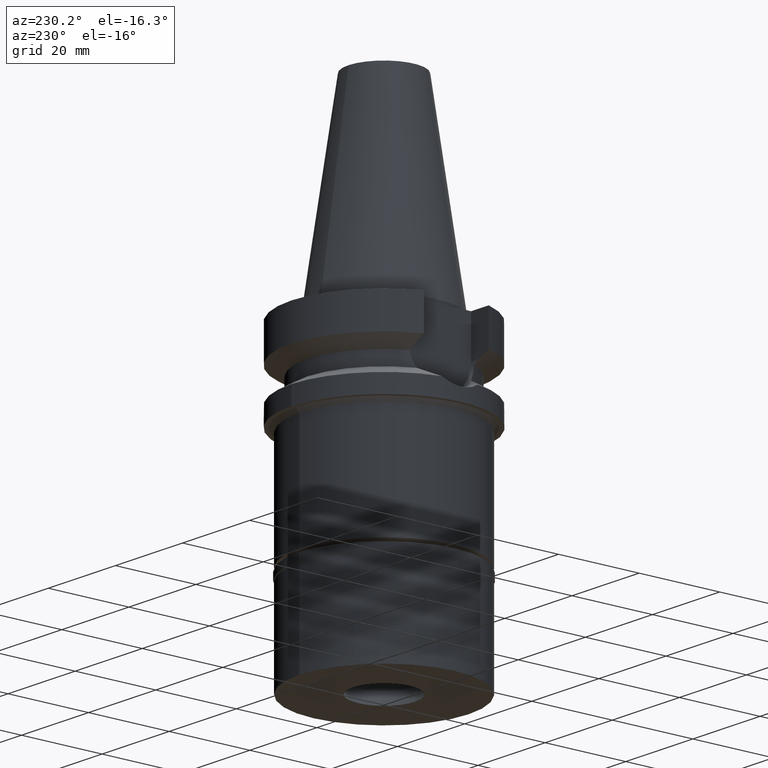
[diagram: clean part render]
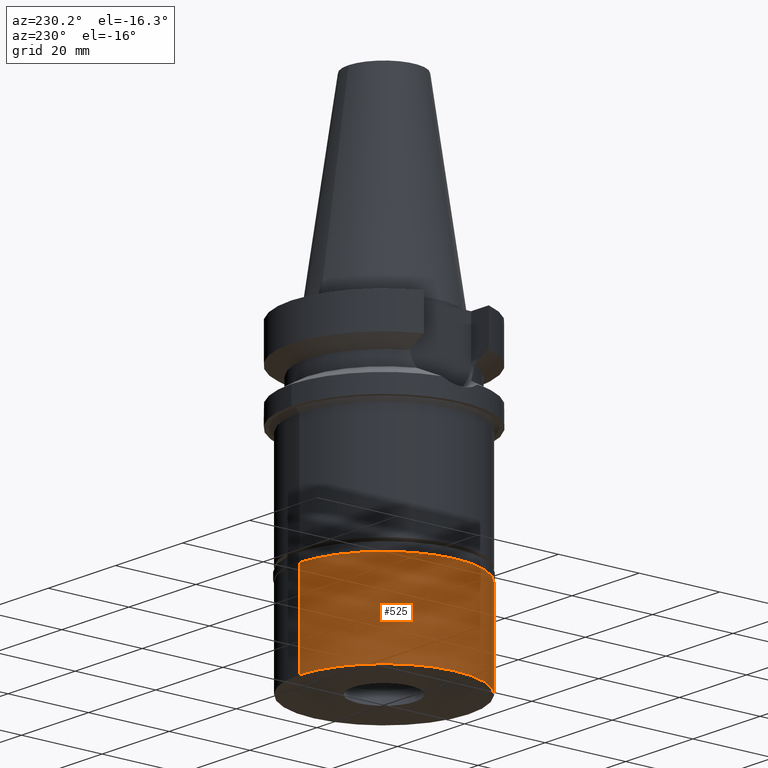
[diagram: same view with one face highlighted and labeled with its STEP entity id]
A machine part, auxiliary view. The second image highlights one B-rep face of the part: STEP entity #525.
In plain terms, the highlighted cylindrical surface (partial cylindrical patch) has radius 21 mm, axis along (0, 0, -1).
Its self-contained STEP definition (entity closure, byte-faithful):
#75 = CARTESIAN_POINT ( 'NONE',  ( 0.0000000000000000000, 21.00000000000000000, -24.29999999999999716 ) ) ;
#240 = EDGE_CURVE ( 'NONE', #1729, #2971, #1614, .T. ) ;
#338 = EDGE_LOOP ( 'NONE', ( #2915, #1691, #1137, #707 ) ) ;
#368 = CIRCLE ( 'NONE', #615, 21.00000000000000000 ) ;
#477 = AXIS2_PLACEMENT_3D ( 'NONE', #2210, #1494, #1738 ) ;
#525 = ADVANCED_FACE ( 'NONE', ( #2941 ), #2735, .T. ) ;
#595 = CARTESIAN_POINT ( 'NONE',  ( 0.0000000000000000000, -21.00000000000000000, -24.29999999999999716 ) ) ;
#609 = CARTESIAN_POINT ( 'NONE',  ( 0.0000000000000000000, -21.00000000000000000, -2.000000000000000000 ) ) ;
#615 = AXIS2_PLACEMENT_3D ( 'NONE', #2346, #2623, #2839 ) ;
#707 = ORIENTED_EDGE ( 'NONE', *, *, #1250, .T. ) ;
#792 = AXIS2_PLACEMENT_3D ( 'NONE', #2005, #2471, #2704 ) ;
#932 = VECTOR ( 'NONE', #2495, 1000.000000000000000 ) ;
#969 = CARTESIAN_POINT ( 'NONE',  ( 0.0000000000000000000, -21.00000000000000000, -2.000000000000000000 ) ) ;
#1137 = ORIENTED_EDGE ( 'NONE', *, *, #1619, .T. ) ;
#1222 = CARTESIAN_POINT ( 'NONE',  ( 0.0000000000000000000, 21.00000000000000000, -2.000000000000000000 ) ) ;
#1250 = EDGE_CURVE ( 'NONE', #1632, #1586, #2791, .T. ) ;
#1376 = DIRECTION ( 'NONE',  ( 0.0000000000000000000, 0.0000000000000000000, -1.000000000000000000 ) ) ;
#1494 = DIRECTION ( 'NONE',  ( 0.0000000000000000000, 0.0000000000000000000, 1.000000000000000000 ) ) ;
#1586 = VERTEX_POINT ( 'NONE', #75 ) ;
#1614 = LINE ( 'NONE', #609, #932 ) ;
#1619 = EDGE_CURVE ( 'NONE', #1729, #1632, #368, .T. ) ;
#1632 = VERTEX_POINT ( 'NONE', #1222 ) ;
#1691 = ORIENTED_EDGE ( 'NONE', *, *, #240, .F. ) ;
#1729 = VERTEX_POINT ( 'NONE', #969 ) ;
#1738 = DIRECTION ( 'NONE',  ( 0.0000000000000000000, 1.000000000000000000, 0.0000000000000000000 ) ) ;
#1746 = VECTOR ( 'NONE', #1376, 1000.000000000000000 ) ;
#1810 = CIRCLE ( 'NONE', #477, 21.00000000000000000 ) ;
#2005 = CARTESIAN_POINT ( 'NONE',  ( 0.0000000000000000000, 0.0000000000000000000, 0.0000000000000000000 ) ) ;
#2210 = CARTESIAN_POINT ( 'NONE',  ( 0.0000000000000000000, 0.0000000000000000000, -24.29999999999999716 ) ) ;
#2346 = CARTESIAN_POINT ( 'NONE',  ( 0.0000000000000000000, 0.0000000000000000000, -2.000000000000000000 ) ) ;
#2471 = DIRECTION ( 'NONE',  ( 0.0000000000000000000, 0.0000000000000000000, -1.000000000000000000 ) ) ;
#2495 = DIRECTION ( 'NONE',  ( 0.0000000000000000000, 0.0000000000000000000, -1.000000000000000000 ) ) ;
#2623 = DIRECTION ( 'NONE',  ( 0.0000000000000000000, 0.0000000000000000000, -1.000000000000000000 ) ) ;
#2704 = DIRECTION ( 'NONE',  ( 0.0000000000000000000, -1.000000000000000000, 0.0000000000000000000 ) ) ;
#2735 = CYLINDRICAL_SURFACE ( 'NONE', #792, 21.00000000000000000 ) ;
#2774 = CARTESIAN_POINT ( 'NONE',  ( 0.0000000000000000000, 21.00000000000000000, -2.000000000000000000 ) ) ;
#2791 = LINE ( 'NONE', #2774, #1746 ) ;
#2839 = DIRECTION ( 'NONE',  ( 0.0000000000000000000, -1.000000000000000000, 0.0000000000000000000 ) ) ;
#2853 = EDGE_CURVE ( 'NONE', #1586, #2971, #1810, .T. ) ;
#2915 = ORIENTED_EDGE ( 'NONE', *, *, #2853, .T. ) ;
#2941 = FACE_OUTER_BOUND ( 'NONE', #338, .T. ) ;
#2971 = VERTEX_POINT ( 'NONE', #595 ) ;